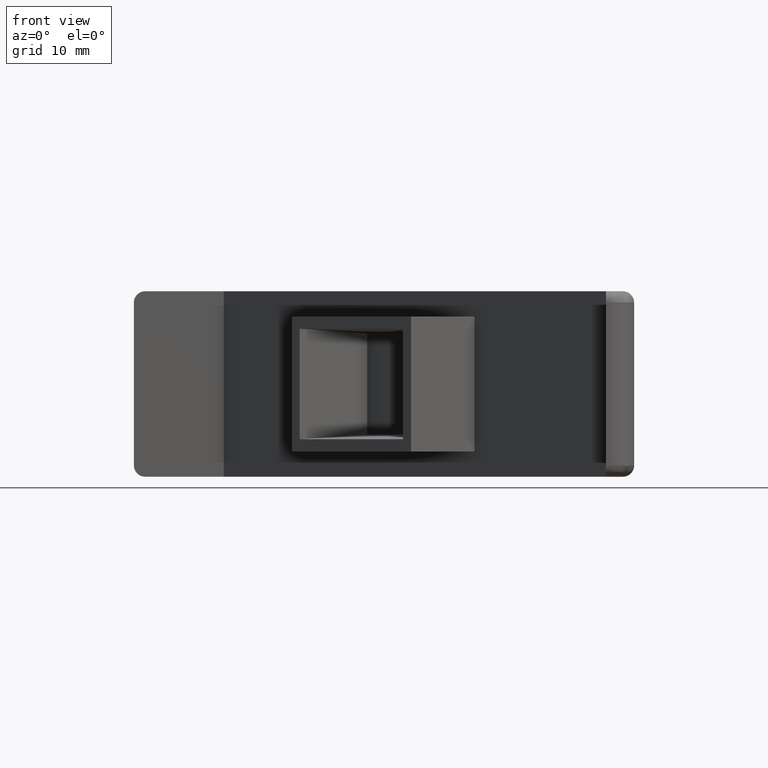
[diagram: clean part render]
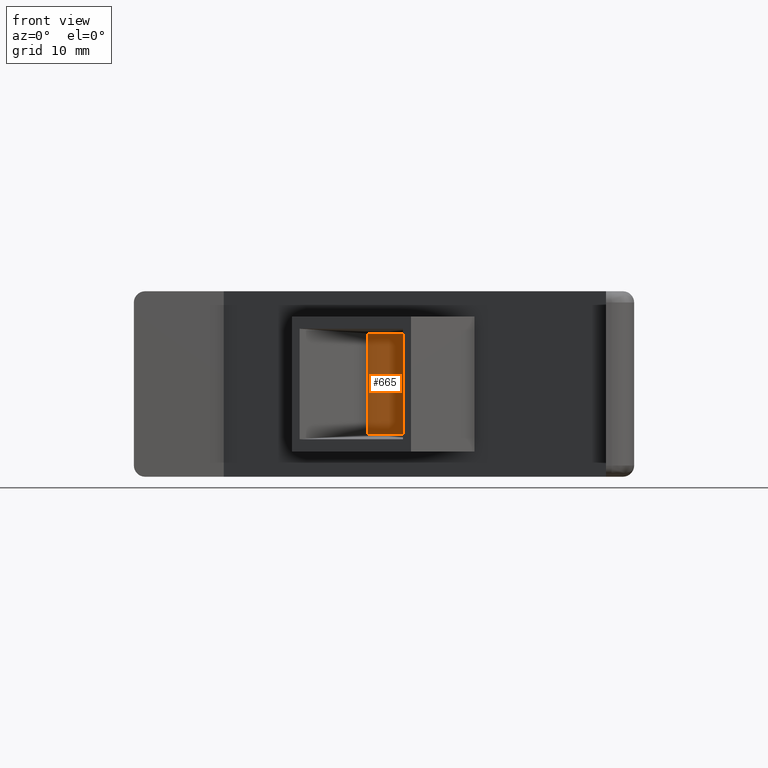
[diagram: same view with one face highlighted and labeled with its STEP entity id]
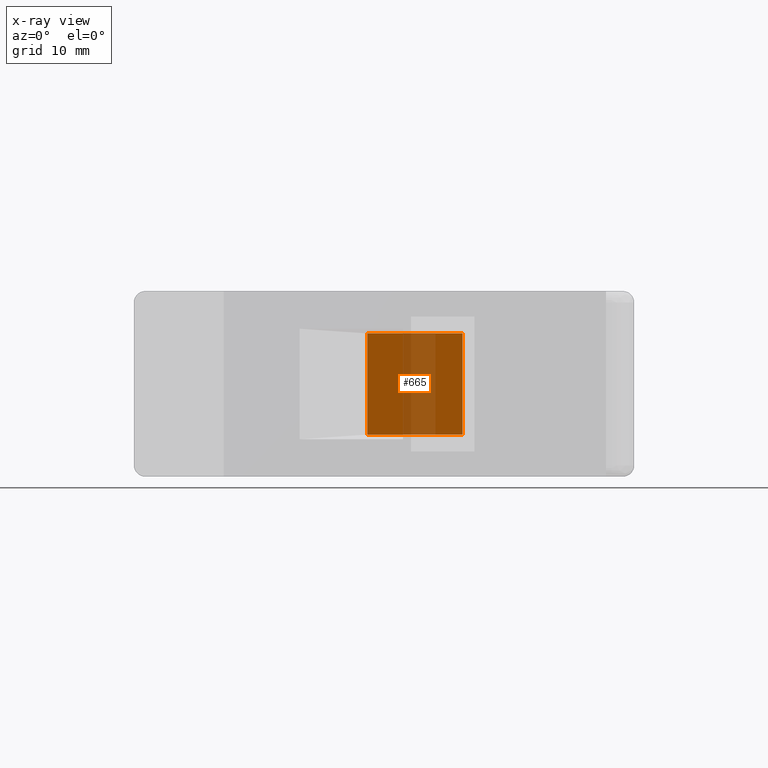
[diagram: x-ray of the same camera — body ghosted, the highlighted face saturated]
A machine part, front view. The second image highlights one B-rep face of the part: STEP entity #665.
The next image is the same camera in x-ray: the body ghosted, the highlighted face saturated — about 34% of this face is hidden behind the body in this view.
In plain terms, the highlighted planar face has unit normal (0.7071, 0.7071, 0).
Its self-contained STEP definition (entity closure, byte-faithful):
#45=FACE_OUTER_BOUND('',#88,.T.);
#88=EDGE_LOOP('',(#478,#479,#480,#481));
#150=LINE('',#1057,#212);
#151=LINE('',#1059,#213);
#152=LINE('',#1061,#214);
#153=LINE('',#1062,#215);
#212=VECTOR('',#828,12.);
#213=VECTOR('',#829,9.00000000000001);
#214=VECTOR('',#830,12.);
#215=VECTOR('',#831,9.00000000000001);
#316=VERTEX_POINT('',#1055);
#317=VERTEX_POINT('',#1056);
#318=VERTEX_POINT('',#1058);
#319=VERTEX_POINT('',#1060);
#378=EDGE_CURVE('',#316,#317,#150,.T.);
#379=EDGE_CURVE('',#318,#316,#151,.T.);
#380=EDGE_CURVE('',#319,#318,#152,.T.);
#381=EDGE_CURVE('',#319,#317,#153,.T.);
#478=ORIENTED_EDGE('',*,*,#378,.F.);
#479=ORIENTED_EDGE('',*,*,#379,.F.);
#480=ORIENTED_EDGE('',*,*,#380,.F.);
#481=ORIENTED_EDGE('',*,*,#381,.T.);
#645=PLANE('',#717);
#665=ADVANCED_FACE('',(#45),#645,.F.);
#717=AXIS2_PLACEMENT_3D('',#1054,#826,#827);
#826=DIRECTION('center_axis',(0.707106781186548,0.707106781186548,0.));
#827=DIRECTION('ref_axis',(-0.707106781186548,0.707106781186547,0.));
#828=DIRECTION('',(-0.707106781186547,0.707106781186548,0.));
#829=DIRECTION('',(5.41087747005995E-65,0.,-1.));
#830=DIRECTION('',(0.707106781186547,-0.707106781186548,0.));
#831=DIRECTION('',(5.41087747005995E-65,0.,-1.));
#1054=CARTESIAN_POINT('Origin',(8.00000000000005,42.,8.25000000000001));
#1055=CARTESIAN_POINT('',(29.2426406871193,20.7573593128808,-4.5));
#1056=CARTESIAN_POINT('',(20.7573593128808,29.2426406871193,-4.5));
#1057=CARTESIAN_POINT('',(19.696699141101,30.3033008588991,-4.5));
#1058=CARTESIAN_POINT('',(29.2426406871193,20.7573593128808,4.5));
#1059=CARTESIAN_POINT('',(29.2426406871193,20.7573593128808,13.9628073243519));
#1060=CARTESIAN_POINT('',(20.7573593128808,29.2426406871193,4.5));
#1061=CARTESIAN_POINT('',(19.696699141101,30.3033008588991,4.5));
#1062=CARTESIAN_POINT('',(20.7573593128808,29.2426406871193,13.9628073243519));